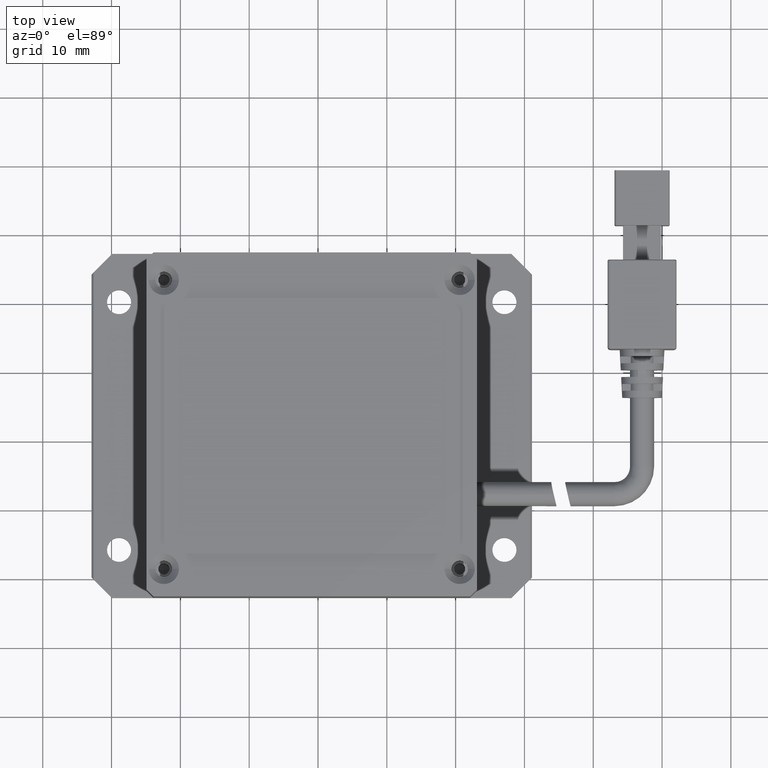
[diagram: clean part render]
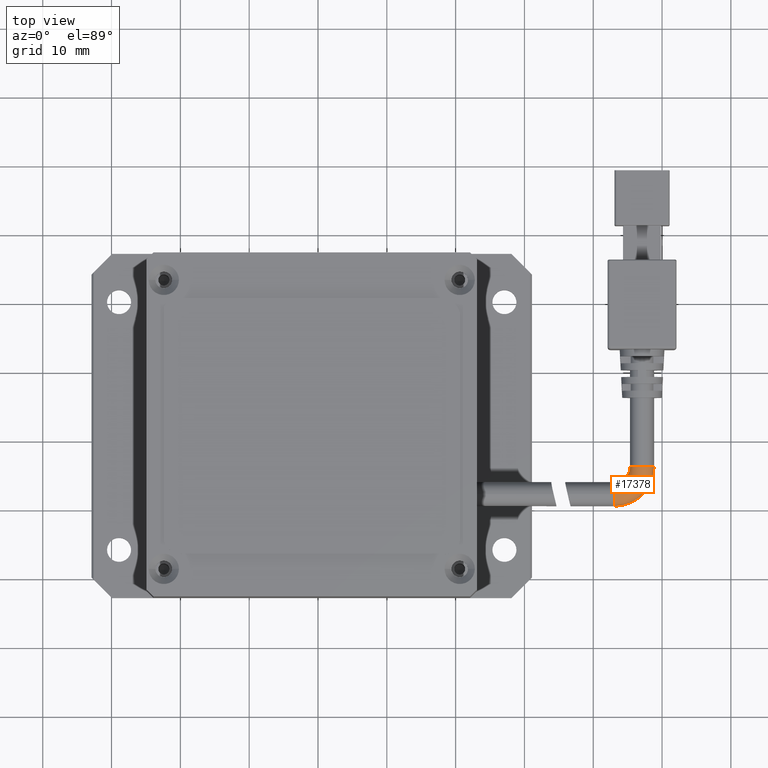
[diagram: same view with one face highlighted and labeled with its STEP entity id]
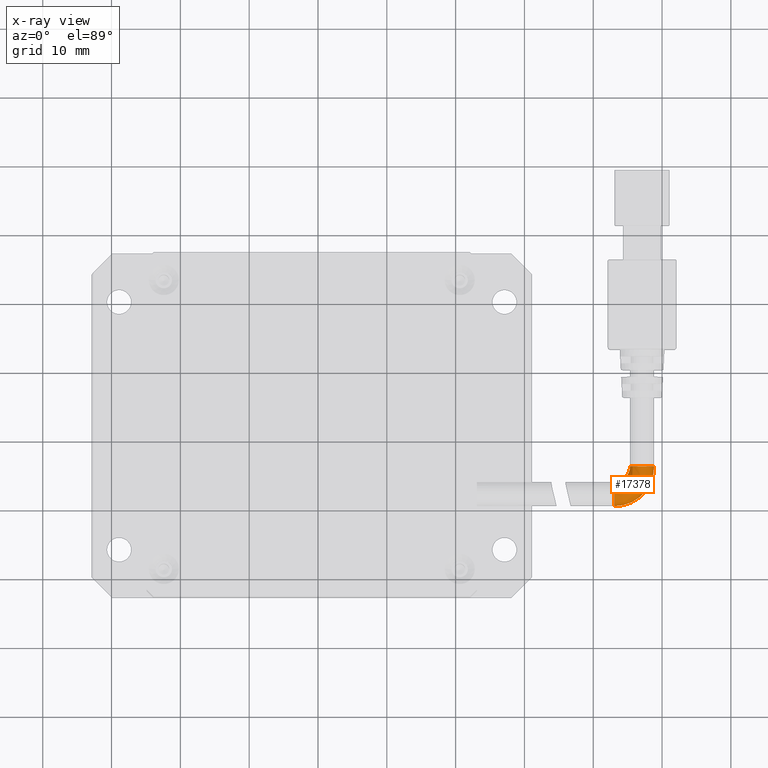
[diagram: x-ray of the same camera — body ghosted, the highlighted face saturated]
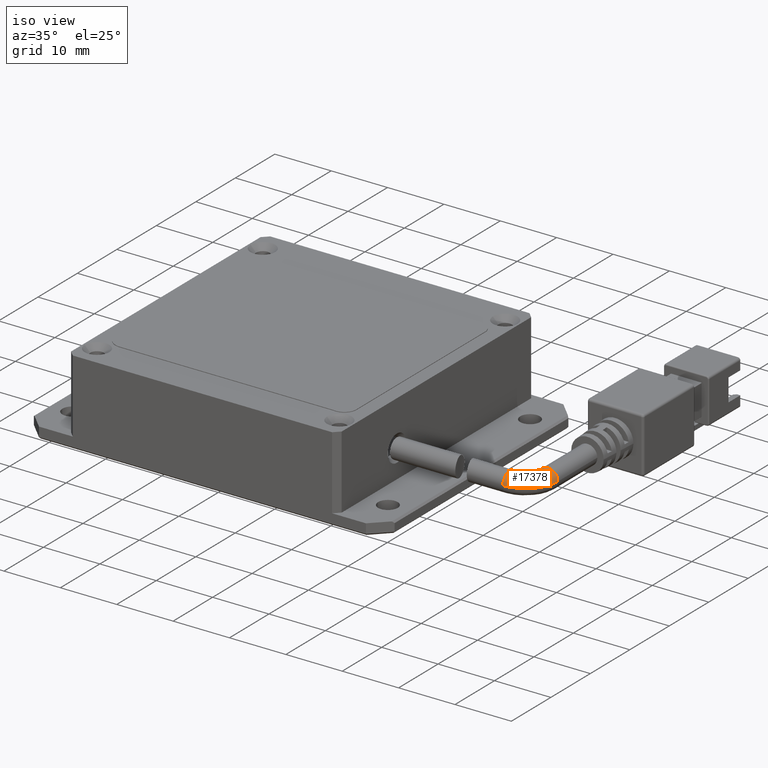
[diagram: same view with one face highlighted and labeled with its STEP entity id]
A machine part, top view. The second image highlights one B-rep face of the part: STEP entity #17378.
The next image is the same camera in x-ray: the body ghosted, the highlighted face saturated — about 0% of this face is hidden behind the body in this view.
A second angle (iso view) of the same face is appended — the face is thin or edge-on in the first view.
In plain terms, the highlighted face is a freeform B-spline surface patch.
Its self-contained STEP definition (entity closure, byte-faithful):
#543 = CIRCLE ( 'NONE', #12716, 2.249999999999995100 ) ;
#620 = EDGE_LOOP ( 'NONE', ( #13391, #20477, #2590, #11526, #1658 ) ) ;
#1186 = VERTEX_POINT ( 'NONE', #9278 ) ;
#1389 = CARTESIAN_POINT ( 'NONE',  ( 46.46143734663343100, -9.459049255440968200, 4.999999999983690400 ) ) ;
#1456 = CARTESIAN_POINT ( 'NONE',  ( 43.09316533027873000, -5.959049255440961100, 4.999999999983692200 ) ) ;
#1566 = DIRECTION ( 'NONE',  ( -3.081487911019577400E-033, 1.000000000000000000, -2.672764710092188000E-049 ) ) ;
#1658 = ORIENTED_EDGE ( 'NONE', *, *, #1751, .F. ) ;
#1751 = EDGE_CURVE ( 'NONE', #1186, #12945, #13655, .T. ) ;
#2590 = ORIENTED_EDGE ( 'NONE', *, *, #7750, .T. ) ;
#3002 = CARTESIAN_POINT ( 'NONE',  ( 48.84316533027873700, -3.709049255440967300, 8.499999999983691300 ) ) ;
#3078 = CARTESIAN_POINT ( 'NONE',  ( 45.34316533027873700, -3.709049255440967800, 4.999999999983692200 ) ) ;
#3401 = CIRCLE ( 'NONE', #9802, 1.749999999999999800 ) ;
#3857 = CARTESIAN_POINT ( 'NONE',  ( 43.09316533027873700, -7.709049255440968200, 4.999999999983692200 ) ) ;
#4174 = CARTESIAN_POINT ( 'NONE',  ( 43.09316533027873700, -9.459049255440968200, 4.999999999983692200 ) ) ;
#4277 = CARTESIAN_POINT ( 'NONE',  ( 43.09316533027873700, -7.709049255440968200, 6.749999999983693000 ) ) ;
#4554 = CARTESIAN_POINT ( 'NONE',  ( 48.84316533027873700, -3.709049255440967300, 4.999999999983692200 ) ) ;
#4634 = CARTESIAN_POINT ( 'NONE',  ( 46.46143734663343100, -9.459049255440968200, 8.499999999983691300 ) ) ;
#5457 = CARTESIAN_POINT ( 'NONE',  ( 43.09316533027873700, -7.709049255440968200, 4.999999999983692200 ) ) ;
#5491 = DIRECTION ( 'NONE',  ( 0.0000000000000000000, -1.000000000000000000, 0.0000000000000000000 ) ) ;
#6006 = EDGE_CURVE ( 'NONE', #10900, #1186, #19147, .T. ) ;
#6251 = CARTESIAN_POINT ( 'NONE',  ( 45.34316533027873700, -3.709049255440967300, 8.499999999983691300 ) ) ;
#6329 = DIRECTION ( 'NONE',  ( -2.588449845256445000E-031, -2.672764710092196000E-049, -1.000000000000000000 ) ) ;
#7048 = DIRECTION ( 'NONE',  ( 0.0000000000000000000, -1.000000000000000000, 0.0000000000000000000 ) ) ;
#7083 = CIRCLE ( 'NONE', #8207, 1.749999999999999800 ) ;
#7750 = EDGE_CURVE ( 'NONE', #14288, #13603, #7083, .T. ) ;
#7830 = CARTESIAN_POINT ( 'NONE',  ( 44.41118481493925400, -5.959049255440965500, 8.499999999983691300 ) ) ;
#8207 = AXIS2_PLACEMENT_3D ( 'NONE', #5457, #16460, #7048 ) ;
#8492 = DIRECTION ( 'NONE',  ( -2.588449845256445000E-031, -2.672764710092196000E-049, -1.000000000000000000 ) ) ;
#9044 = FACE_OUTER_BOUND ( 'NONE', #620, .T. ) ;
#9278 = CARTESIAN_POINT ( 'NONE',  ( 48.84316533027874400, -3.709049255440967800, 4.999999999983692200 ) ) ;
#9409 = CARTESIAN_POINT ( 'NONE',  ( 45.34316533027873000, -3.709049255440967300, 4.999999999983692200 ) ) ;
#9412 =( BOUNDED_SURFACE ( )  B_SPLINE_SURFACE ( 3, 3, ( 
 ( #4554, #10914, #1389, #12488 ),
 ( #3002, #14097, #4634, #15675 ),
 ( #6251, #17252, #7830, #18814 ),
 ( #9409, #20382, #10975, #1456 ) ),
 .UNSPECIFIED., .F., .F., .T. ) 
 B_SPLINE_SURFACE_WITH_KNOTS ( ( 4, 4 ),
 ( 4, 4 ),
 ( 0.0000000000000000000, 1.000000000000000000 ),
 ( 0.0000000000000000000, 1.000000000000000000 ),
 .UNSPECIFIED. ) 
 GEOMETRIC_REPRESENTATION_ITEM ( )  RATIONAL_B_SPLINE_SURFACE ( (
 ( 1.000000000000000000, 0.8047378541243649400, 0.8047378541243649400, 1.000000000000000000),
 ( 0.3333333333333333700, 0.2682459513747883500, 0.2682459513747883500, 0.3333333333333333700),
 ( 0.3333333333333333700, 0.2682459513747883500, 0.2682459513747883500, 0.3333333333333333700),
 ( 1.000000000000000000, 0.8047378541243649400, 0.8047378541243649400, 1.000000000000000000) ) ) 
 REPRESENTATION_ITEM ( '' )  SURFACE ( )  );
#9802 = AXIS2_PLACEMENT_3D ( 'NONE', #3857, #14938, #5491 ) ;
#10757 = AXIS2_PLACEMENT_3D ( 'NONE', #11108, #1566, #12686 ) ;
#10900 = VERTEX_POINT ( 'NONE', #3078 ) ;
#10914 = CARTESIAN_POINT ( 'NONE',  ( 48.84316533027873700, -7.077321271795669900, 4.999999999983690400 ) ) ;
#10975 = CARTESIAN_POINT ( 'NONE',  ( 44.41118481493926100, -5.959049255440966400, 4.999999999983690400 ) ) ;
#11108 = CARTESIAN_POINT ( 'NONE',  ( 47.09316533027874400, -3.709049255440967800, 4.999999999983692200 ) ) ;
#11526 = ORIENTED_EDGE ( 'NONE', *, *, #13408, .T. ) ;
#12488 = CARTESIAN_POINT ( 'NONE',  ( 43.09316533027873000, -9.459049255440964600, 4.999999999983692200 ) ) ;
#12686 = DIRECTION ( 'NONE',  ( 1.000000000000000000, 0.0000000000000000000, 0.0000000000000000000 ) ) ;
#12716 = AXIS2_PLACEMENT_3D ( 'NONE', #17888, #8492, #19471 ) ;
#12945 = VERTEX_POINT ( 'NONE', #4174 ) ;
#13391 = ORIENTED_EDGE ( 'NONE', *, *, #6006, .F. ) ;
#13408 = EDGE_CURVE ( 'NONE', #13603, #12945, #3401, .T. ) ;
#13603 = VERTEX_POINT ( 'NONE', #4277 ) ;
#13655 = CIRCLE ( 'NONE', #17627, 5.749999999999998200 ) ;
#14097 = CARTESIAN_POINT ( 'NONE',  ( 48.84316533027873700, -7.077321271795670800, 8.499999999983691300 ) ) ;
#14288 = VERTEX_POINT ( 'NONE', #15709 ) ;
#14938 = DIRECTION ( 'NONE',  ( 1.000000000000000000, 1.836970198721029700E-016, -2.588449845256445000E-031 ) ) ;
#15675 = CARTESIAN_POINT ( 'NONE',  ( 43.09316533027873700, -9.459049255440964600, 8.499999999983691300 ) ) ;
#15709 = CARTESIAN_POINT ( 'NONE',  ( 43.09316533027873700, -5.959049255440968200, 4.999999999983692200 ) ) ;
#15773 = CARTESIAN_POINT ( 'NONE',  ( 43.09316533027873700, -3.709049255440967800, 4.999999999983692200 ) ) ;
#16460 = DIRECTION ( 'NONE',  ( 1.000000000000000000, 1.836970198721029700E-016, -2.588449845256445000E-031 ) ) ;
#17252 = CARTESIAN_POINT ( 'NONE',  ( 45.34316533027873700, -5.027068740101500000, 8.499999999983691300 ) ) ;
#17336 = DIRECTION ( 'NONE',  ( -1.000000000000000000, 0.0000000000000000000, 0.0000000000000000000 ) ) ;
#17378 = ADVANCED_FACE ( 'NONE', ( #9044 ), #9412, .T. ) ;
#17573 = EDGE_CURVE ( 'NONE', #10900, #14288, #543, .T. ) ;
#17627 = AXIS2_PLACEMENT_3D ( 'NONE', #15773, #6329, #17336 ) ;
#17888 = CARTESIAN_POINT ( 'NONE',  ( 43.09316533027873700, -3.709049255440967800, 4.999999999983692200 ) ) ;
#18814 = CARTESIAN_POINT ( 'NONE',  ( 43.09316533027873700, -5.959049255440961100, 8.499999999983691300 ) ) ;
#19147 = CIRCLE ( 'NONE', #10757, 1.750000000000001600 ) ;
#19471 = DIRECTION ( 'NONE',  ( -1.000000000000000000, 0.0000000000000000000, 0.0000000000000000000 ) ) ;
#20382 = CARTESIAN_POINT ( 'NONE',  ( 45.34316533027871500, -5.027068740101500000, 4.999999999983690400 ) ) ;
#20477 = ORIENTED_EDGE ( 'NONE', *, *, #17573, .T. ) ;